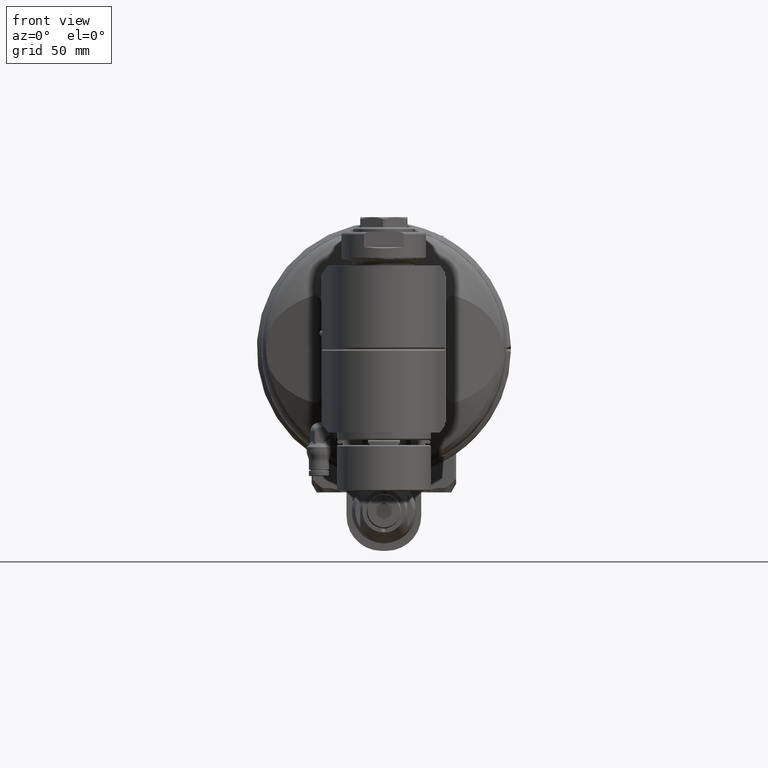
[diagram: clean part render]
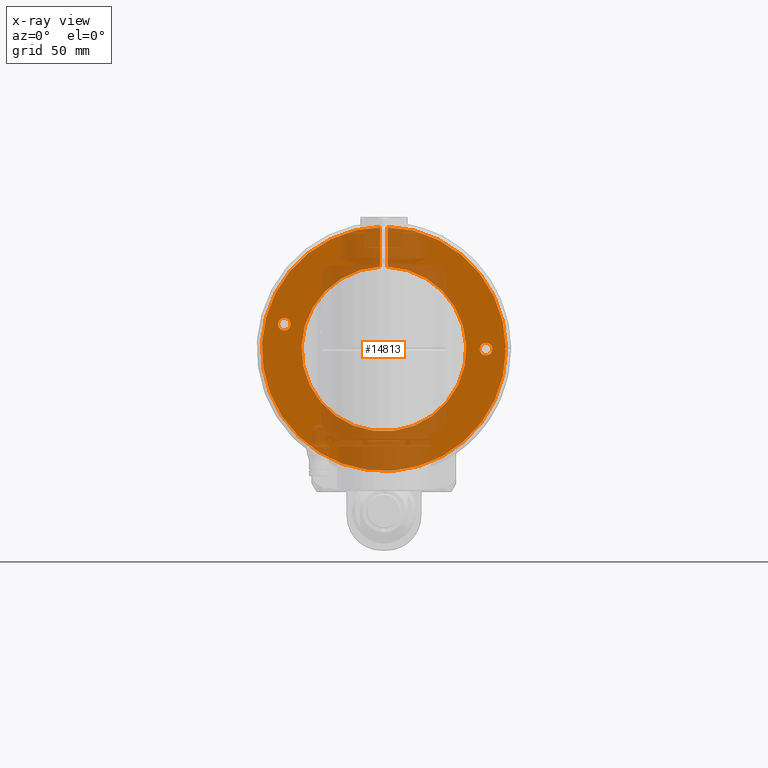
[diagram: x-ray — body ghosted, one internal face saturated and labeled with its STEP entity id]
A machine part, front view, then the same camera in x-ray: the body is ghosted and one INTERNAL B-rep face — a face not visible from any outside direction — is saturated and labeled: STEP entity #14813.
In plain terms, the highlighted planar face has unit normal (0, -1, 0).
Its self-contained STEP definition (entity closure, byte-faithful):
#583=FACE_BOUND('',#4671,.T.);
#584=FACE_BOUND('',#4672,.T.);
#1519=LINE('',#27488,#2499);
#1520=LINE('',#27515,#2500);
#1522=LINE('',#27519,#2502);
#1523=LINE('',#27530,#2503);
#2499=VECTOR('',#20093,15.93371385813);
#2500=VECTOR('',#20106,0.658925954023283);
#2502=VECTOR('',#20110,0.658925954023283);
#2503=VECTOR('',#20119,15.93371385814);
#3661=FACE_OUTER_BOUND('',#4670,.T.);
#4670=EDGE_LOOP('',(#12498,#12499,#12500,#12501,#12502,#12503,#12504));
#4671=EDGE_LOOP('',(#12505));
#4672=EDGE_LOOP('',(#12506));
#5597=CIRCLE('',#16404,49.);
#5598=CIRCLE('',#16405,33.07735026919);
#5599=CIRCLE('',#16406,49.);
#5600=CIRCLE('',#16407,2.5);
#5601=CIRCLE('',#16408,2.5);
#6851=VERTEX_POINT('',#27485);
#6852=VERTEX_POINT('',#27487);
#6857=VERTEX_POINT('',#27510);
#6858=VERTEX_POINT('',#27514);
#6859=VERTEX_POINT('',#27518);
#6861=VERTEX_POINT('',#27527);
#6862=VERTEX_POINT('',#27529);
#6863=VERTEX_POINT('',#27532);
#6864=VERTEX_POINT('',#27534);
#8811=EDGE_CURVE('',#6852,#6851,#1519,.T.);
#8819=EDGE_CURVE('',#6858,#6857,#1520,.T.);
#8821=EDGE_CURVE('',#6859,#6858,#1522,.T.);
#8824=EDGE_CURVE('',#6857,#6852,#5597,.T.);
#8825=EDGE_CURVE('',#6851,#6861,#5598,.T.);
#8826=EDGE_CURVE('',#6861,#6862,#1523,.T.);
#8827=EDGE_CURVE('',#6862,#6859,#5599,.T.);
#8828=EDGE_CURVE('',#6863,#6863,#5600,.T.);
#8829=EDGE_CURVE('',#6864,#6864,#5601,.T.);
#12498=ORIENTED_EDGE('',*,*,#8824,.T.);
#12499=ORIENTED_EDGE('',*,*,#8811,.T.);
#12500=ORIENTED_EDGE('',*,*,#8825,.T.);
#12501=ORIENTED_EDGE('',*,*,#8826,.T.);
#12502=ORIENTED_EDGE('',*,*,#8827,.T.);
#12503=ORIENTED_EDGE('',*,*,#8821,.T.);
#12504=ORIENTED_EDGE('',*,*,#8819,.T.);
#12505=ORIENTED_EDGE('',*,*,#8828,.T.);
#12506=ORIENTED_EDGE('',*,*,#8829,.T.);
#14063=PLANE('',#16403);
#14813=ADVANCED_FACE('',(#3661,#583,#584),#14063,.T.);
#16403=AXIS2_PLACEMENT_3D('',#27525,#20113,#20114);
#16404=AXIS2_PLACEMENT_3D('',#27526,#20115,#20116);
#16405=AXIS2_PLACEMENT_3D('',#27528,#20117,#20118);
#16406=AXIS2_PLACEMENT_3D('',#27531,#20120,#20121);
#16407=AXIS2_PLACEMENT_3D('',#27533,#20122,#20123);
#16408=AXIS2_PLACEMENT_3D('',#27535,#20124,#20125);
#20093=DIRECTION('',(-5.896537023224E-13,0.,-1.));
#20106=DIRECTION('',(0.75592894601842,0.,0.654653670708017));
#20110=DIRECTION('',(-0.75592894601842,0.,0.654653670708017));
#20113=DIRECTION('center_axis',(0.,-1.,0.));
#20114=DIRECTION('ref_axis',(0.,0.,1.));
#20115=DIRECTION('center_axis',(0.,-1.,0.));
#20116=DIRECTION('ref_axis',(0.99996124901896,0.,0.00880343458216564));
#20117=DIRECTION('center_axis',(0.,1.,0.));
#20118=DIRECTION('ref_axis',(0.0453482515314194,0.,0.998971238866787));
#20119=DIRECTION('',(0.,0.,1.));
#20120=DIRECTION('center_axis',(0.,-1.,0.));
#20121=DIRECTION('ref_axis',(-0.0306122448979601,0.,0.999531335407904));
#20122=DIRECTION('center_axis',(0.,1.,0.));
#20123=DIRECTION('ref_axis',(-1.,0.,0.));
#20124=DIRECTION('center_axis',(0.,1.,0.));
#20125=DIRECTION('ref_axis',(-1.,0.,0.));
#27485=CARTESIAN_POINT('',(1.499999999991,0.,33.04332157686));
#27487=CARTESIAN_POINT('',(1.5,3.552713678801E-14,48.97703543499));
#27488=CARTESIAN_POINT('',(1.5,0.,48.97703543499));
#27510=CARTESIAN_POINT('',(48.99810120193,-1.42108547152E-14,0.4313682945261));
#27514=CARTESIAN_POINT('',(48.5,-1.42108547152E-14,-1.845657092209E-14));
#27515=CARTESIAN_POINT('',(48.5,-1.42108547152E-14,-1.845657092209E-14));
#27518=CARTESIAN_POINT('',(48.99810120193,0.,-0.4313682945262));
#27519=CARTESIAN_POINT('',(48.99810120193,0.,-0.4313682945262));
#27525=CARTESIAN_POINT('Origin',(0.,0.,49.13074005203));
#27526=CARTESIAN_POINT('Origin',(0.,3.552713678801E-14,0.));
#27527=CARTESIAN_POINT('',(-1.5,1.657933050107E-14,33.04332157684));
#27528=CARTESIAN_POINT('Origin',(0.,-9.237055564881E-14,0.));
#27529=CARTESIAN_POINT('',(-1.5,0.,48.97703543499));
#27530=CARTESIAN_POINT('',(-1.5,1.657933050107E-14,33.04332157684));
#27531=CARTESIAN_POINT('Origin',(0.,-5.684341886081E-14,0.));
#27532=CARTESIAN_POINT('',(-37.5,0.,10.));
#27533=CARTESIAN_POINT('Origin',(-40.,0.,10.));
#27534=CARTESIAN_POINT('',(43.5,0.,0.));
#27535=CARTESIAN_POINT('Origin',(41.,0.,0.));